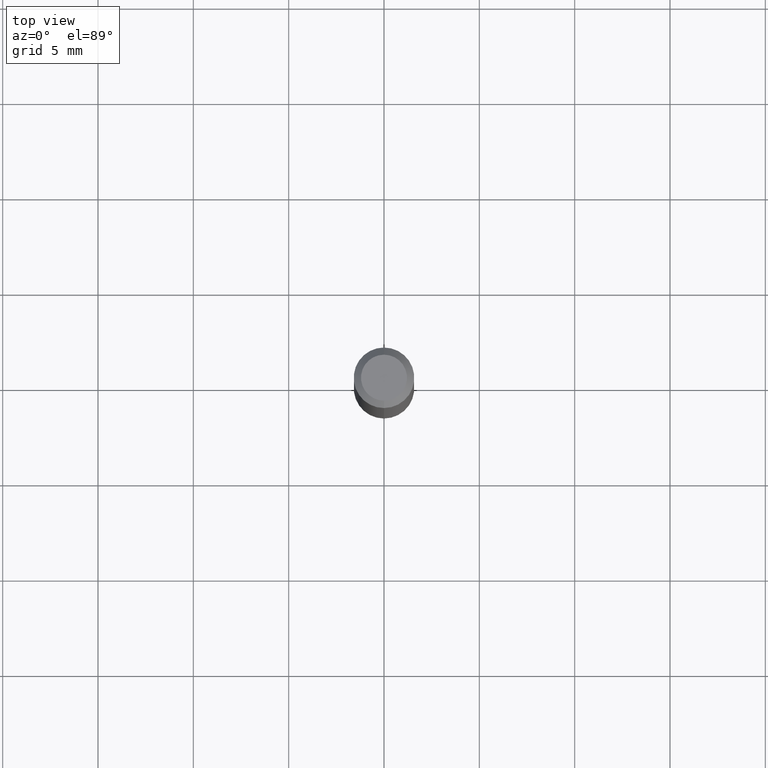
[diagram: clean part render]
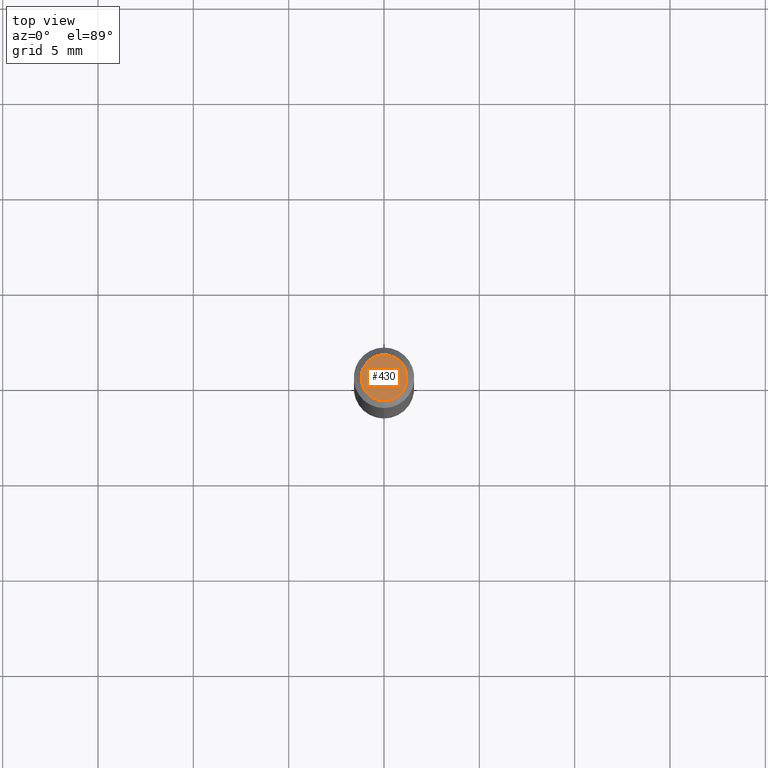
[diagram: same view with one face highlighted and labeled with its STEP entity id]
A machine part, top view. The second image highlights one B-rep face of the part: STEP entity #430.
In plain terms, the highlighted planar face has unit normal (0, -0, -1).
Its self-contained STEP definition (entity closure, byte-faithful):
#15 = AXIS2_PLACEMENT_3D ( 'NONE', #183, #29, #181 ) ;
#29 = DIRECTION ( 'NONE',  ( -2.445456695284808407E-29, 3.491498682341725193E-15, 1.000000000000000000 ) ) ;
#98 = FACE_OUTER_BOUND ( 'NONE', #297, .T. ) ;
#128 = CIRCLE ( 'NONE', #15, 0.04749999999999999362 ) ;
#133 = CARTESIAN_POINT ( 'NONE',  ( 2.166551326140729092E-46, -3.093291782688908971E-32, -8.859495775648578081E-18 ) ) ;
#139 = CARTESIAN_POINT ( 'NONE',  ( 3.316907271900976096E-16, 0.04749999999999999362, -1.702759352990562277E-16 ) ) ;
#143 = DIRECTION ( 'NONE',  ( -2.445456695284808407E-29, 3.491498682341725193E-15, 1.000000000000000000 ) ) ;
#157 = ORIENTED_EDGE ( 'NONE', *, *, #367, .T. ) ;
#181 = DIRECTION ( 'NONE',  ( -6.982962677686266711E-15, -1.000000000000000000, 3.491498682341725193E-15 ) ) ;
#183 = CARTESIAN_POINT ( 'NONE',  ( 2.166551326140729092E-46, -3.093291782688908971E-32, -8.859495775648578081E-18 ) ) ;
#254 = CARTESIAN_POINT ( 'NONE',  ( 3.840629472727447874E-16, 0.04749999999999999362, -1.747056831868805136E-16 ) ) ;
#271 = CARTESIAN_POINT ( 'NONE',  ( -3.773273898774340269E-16, -0.04749999999999999362, 1.569866916355833451E-16 ) ) ;
#297 = EDGE_LOOP ( 'NONE', ( #370, #157 ) ) ;
#313 = CIRCLE ( 'NONE', #477, 0.04749999999999999362 ) ;
#362 = VERTEX_POINT ( 'NONE', #254 ) ;
#367 = EDGE_CURVE ( 'NONE', #442, #362, #313, .T. ) ;
#370 = ORIENTED_EDGE ( 'NONE', *, *, #494, .T. ) ;
#417 = DIRECTION ( 'NONE',  ( -6.982962677686266711E-15, -1.000000000000000000, 3.491498682341725193E-15 ) ) ;
#423 = DIRECTION ( 'NONE',  ( 2.445456695284808127E-29, -3.491498682341725193E-15, -1.000000000000000000 ) ) ;
#430 = ADVANCED_FACE ( 'NONE', ( #98 ), #492, .F. ) ;
#442 = VERTEX_POINT ( 'NONE', #271 ) ;
#477 = AXIS2_PLACEMENT_3D ( 'NONE', #133, #143, #417 ) ;
#492 = PLANE ( 'NONE',  #504 ) ;
#494 = EDGE_CURVE ( 'NONE', #362, #442, #128, .T. ) ;
#504 = AXIS2_PLACEMENT_3D ( 'NONE', #139, #423, #508 ) ;
#508 = DIRECTION ( 'NONE',  ( 6.982962677686265922E-15, 1.000000000000000000, -3.491498682341725193E-15 ) ) ;